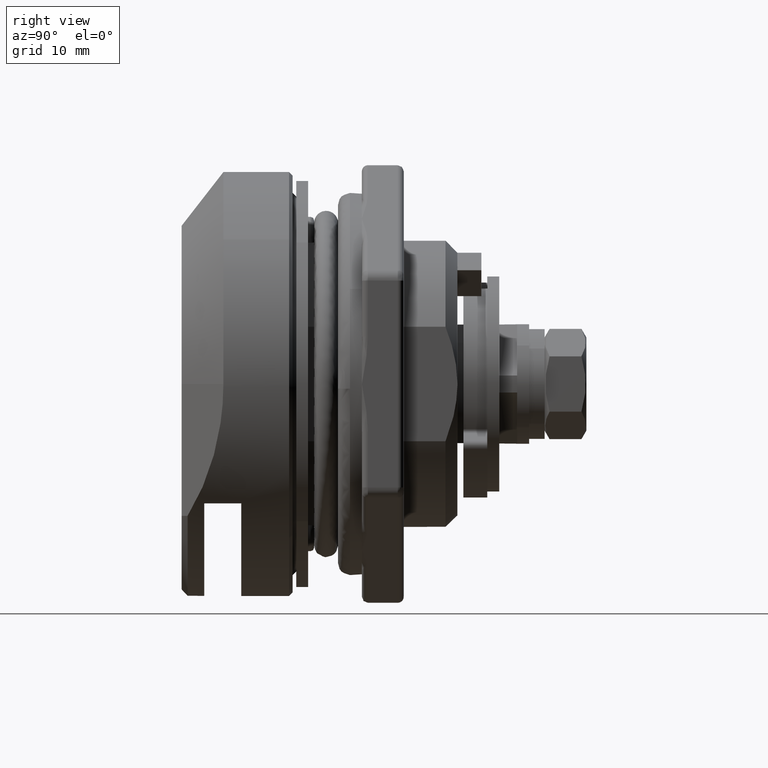
[diagram: clean part render]
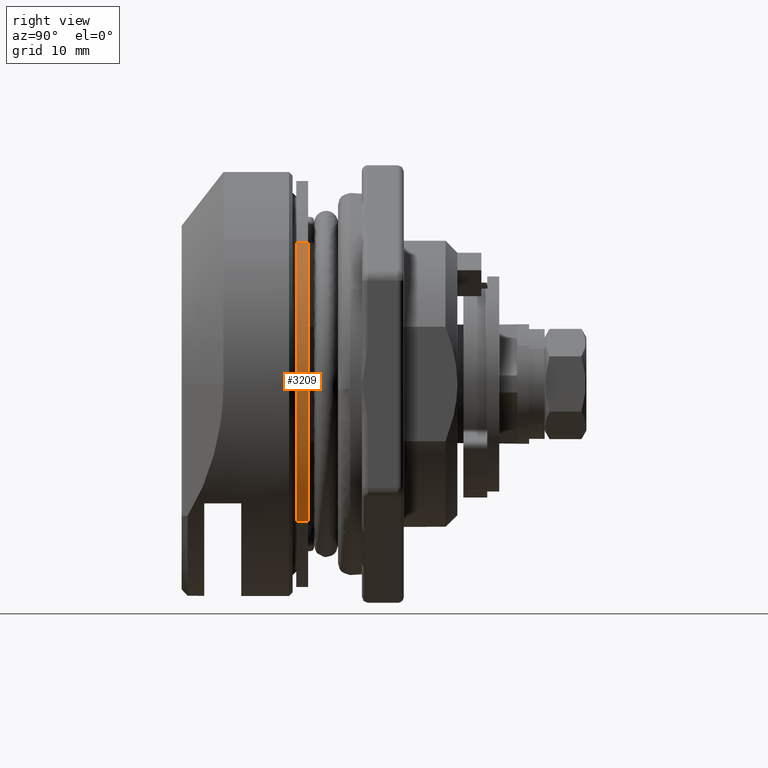
[diagram: same view with one face highlighted and labeled with its STEP entity id]
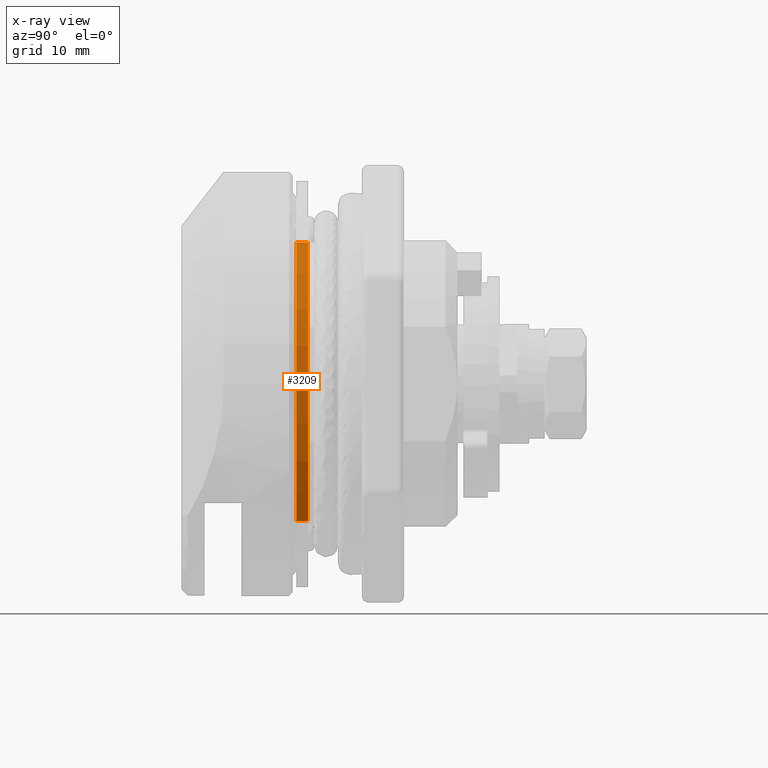
[diagram: x-ray of the same camera — body ghosted, the highlighted face saturated]
A machine part, right view. The second image highlights one B-rep face of the part: STEP entity #3209.
The next image is the same camera in x-ray: the body ghosted, the highlighted face saturated — about 0% of this face is hidden behind the body in this view.
In plain terms, the highlighted face is a freeform B-spline surface patch.
Its self-contained STEP definition (entity closure, byte-faithful):
#2999=CARTESIAN_POINT('',(0.300000000008326,-12.183066308392700,11.856343705453920));
#3000=VERTEX_POINT('',#2999);
#3013=CARTESIAN_POINT('',(1.299999999999968,-12.183066308683390,11.856343705155220));
#3014=VERTEX_POINT('',#3013);
#3015=CARTESIAN_POINT('',(1.299999999999968,-12.183066308683390,11.856343705155220));
#3016=CARTESIAN_POINT('',(0.300000000008326,-12.183066308392700,11.856343705453920));
#3017=QUASI_UNIFORM_CURVE('',1,(#3015,#3016),.UNSPECIFIED.,.F.,.U.);
#3018=EDGE_CURVE('',#3014,#3000,#3017,.T.);
#3070=CARTESIAN_POINT('',(1.299999999999968,-12.533714949061380,-11.485033687686100));
#3071=VERTEX_POINT('',#3070);
#3084=CARTESIAN_POINT('',(0.299999999983196,-12.533714949353771,-11.485033687367020));
#3085=VERTEX_POINT('',#3084);
#3086=CARTESIAN_POINT('',(1.299999999999968,-12.533714949061380,-11.485033687686100));
#3087=CARTESIAN_POINT('',(0.299999999983196,-12.533714949353771,-11.485033687367020));
#3088=QUASI_UNIFORM_CURVE('',1,(#3086,#3087),.UNSPECIFIED.,.F.,.U.);
#3089=EDGE_CURVE('',#3071,#3085,#3088,.T.);
#3142=CARTESIAN_POINT('',(1.324999999999968,-12.533714725772111,-11.485033529466220));
#3143=CARTESIAN_POINT('',(1.324999999999968,-23.379645646699288,0.351223086551685));
#3144=CARTESIAN_POINT('',(1.324999999999968,-12.183066527817532,11.856343870636179));
#3145=CARTESIAN_POINT('',(0.274374999999967,-12.533714725772111,-11.485033529466220));
#3146=CARTESIAN_POINT('',(0.274374999999967,-23.379645646699288,0.351223086551685));
#3147=CARTESIAN_POINT('',(0.274374999999967,-12.183066527817532,11.856343870636179));
#3155=(BOUNDED_SURFACE()B_SPLINE_SURFACE(2,1,((#3142,#3145),(#3143,#3146),(#3144,#3147)),.UNSPECIFIED.,.F.,.F.,.U.)B_SPLINE_SURFACE_WITH_KNOTS((3,3),(2,2),(0.0,27.032440498049439),(0.0,1.0),.UNSPECIFIED.)GEOMETRIC_REPRESENTATION_ITEM()RATIONAL_B_SPLINE_SURFACE(((1.0,1.0),(0.718822509939086,0.718822509939086),(0.977505800795127,0.977505800795127)))REPRESENTATION_ITEM('')SURFACE());
#3156=CARTESIAN_POINT('',(0.299999999999967,-16.999999999999961,-0.000001090220331));
#3157=VERTEX_POINT('',#3156);
#3158=CARTESIAN_POINT('',(0.300000000008326,-12.183066308392700,11.856343705453920));
#3159=CARTESIAN_POINT('',(0.300000000007911,-12.755020690758689,11.268682729777129));
#3160=CARTESIAN_POINT('',(0.300000000007098,-13.725408438124299,10.115220654100311));
#3161=CARTESIAN_POINT('',(0.300000000005775,-14.920080249969400,8.238161578679089));
#3162=CARTESIAN_POINT('',(0.300000000004447,-15.815655901373891,6.351464932428500));
#3163=CARTESIAN_POINT('',(0.300000000003000,-16.493174609844310,4.304116658751858));
#3164=CARTESIAN_POINT('',(0.300000000001506,-16.906849877382140,2.186784520573789));
#3165=CARTESIAN_POINT('',(0.300000000000479,-17.000022988552981,0.717538174116659));
#3166=CARTESIAN_POINT('',(0.299999999999967,-16.999999999999961,-0.000001090220331));
#3167=B_SPLINE_CURVE_WITH_KNOTS('',3,(#3158,#3159,#3160,#3161,#3162,#3163,#3164,#3165,#3166),.UNSPECIFIED.,.F.,.U.,(4,1,1,1,1,1,4),(0.000000012820903,2.460141705217081,4.510261295356344,6.662867222448802,8.712994961610157,10.968137193775320,13.120754755714220),.UNSPECIFIED.);
#3168=EDGE_CURVE('',#3000,#3157,#3167,.T.);
#3169=ORIENTED_EDGE('',*,*,#3168,.T.);
#3170=CARTESIAN_POINT('',(0.299999999999967,-16.999999999999961,-0.000001090220331));
#3171=CARTESIAN_POINT('',(0.299999999998479,-17.000099568371770,-1.018002740696978));
#3172=CARTESIAN_POINT('',(0.299999999995991,-16.846131525290652,-2.725570673040670));
#3173=CARTESIAN_POINT('',(0.299999999992158,-16.203610391692159,-5.345702458303602));
#3174=CARTESIAN_POINT('',(0.299999999988866,-15.280166969115990,-7.603383865499750));
#3175=CARTESIAN_POINT('',(0.299999999985734,-13.990157466212260,-9.746348056578141));
#3176=CARTESIAN_POINT('',(0.299999999984012,-13.044001577655139,-10.928196790581509));
#3177=CARTESIAN_POINT('',(0.299999999983196,-12.533714949353771,-11.485033687367020));
#3178=B_SPLINE_CURVE_WITH_KNOTS('',3,(#3170,#3171,#3172,#3173,#3174,#3175,#3176,#3177),.UNSPECIFIED.,.F.,.U.,(4,1,1,1,1,4),(0.000000011988105,3.053989030810294,5.122830665356128,8.078293973527055,10.344157987848750,12.610020466078881),.UNSPECIFIED.);
#3179=EDGE_CURVE('',#3157,#3085,#3178,.T.);
#3180=ORIENTED_EDGE('',*,*,#3179,.T.);
#3181=ORIENTED_EDGE('',*,*,#3089,.F.);
#3182=CARTESIAN_POINT('',(1.299999999999968,-16.999999999999961,-0.000001090220331));
#3183=VERTEX_POINT('',#3182);
#3184=CARTESIAN_POINT('',(1.299999999999968,-16.999999999999961,-0.000001090220331));
#3185=CARTESIAN_POINT('',(1.299999999999967,-17.000140942816358,-1.116526235480513));
#3186=CARTESIAN_POINT('',(1.299999999999969,-16.831134664443500,-2.824064559912044));
#3187=CARTESIAN_POINT('',(1.299999999999969,-16.206685951903779,-5.277880724258214));
#3188=CARTESIAN_POINT('',(1.299999999999970,-15.473335192972989,-7.147606985217486));
#3189=CARTESIAN_POINT('',(1.299999999999963,-14.278773884334120,-9.342762587914796));
#3190=CARTESIAN_POINT('',(1.299999999999967,-13.265929500548371,-10.686139304152210));
#3191=CARTESIAN_POINT('',(1.299999999999968,-12.533714949061380,-11.485033687686100));
#3192=B_SPLINE_CURVE_WITH_KNOTS('',3,(#3184,#3185,#3186,#3187,#3188,#3189,#3190,#3191),.UNSPECIFIED.,.F.,.U.,(4,1,1,1,1,4),(0.000000011992555,3.349537504126058,5.122830665534292,7.585713096423018,9.358999258177786,12.610020466511640),.UNSPECIFIED.);
#3193=EDGE_CURVE('',#3183,#3071,#3192,.T.);
#3194=ORIENTED_EDGE('',*,*,#3193,.F.);
#3195=CARTESIAN_POINT('',(1.299999999999968,-12.183066308683390,11.856343705155220));
#3196=CARTESIAN_POINT('',(1.299999999999973,-12.826518055908741,11.195232115143311));
#3197=CARTESIAN_POINT('',(1.299999999999953,-14.114632041529090,9.635778068233048));
#3198=CARTESIAN_POINT('',(1.299999999999982,-15.309878681753290,7.511731398328267));
#3199=CARTESIAN_POINT('',(1.299999999999960,-16.133820891068190,5.447684073327999));
#3200=CARTESIAN_POINT('',(1.299999999999971,-16.787695875151911,3.177610071883028));
#3201=CARTESIAN_POINT('',(1.299999999999975,-17.000185653168959,1.230084101800232));
#3202=CARTESIAN_POINT('',(1.299999999999968,-16.999999999999961,-0.000001090220331));
#3203=B_SPLINE_CURVE_WITH_KNOTS('',3,(#3195,#3196,#3197,#3198,#3199,#3200,#3201,#3202),.UNSPECIFIED.,.F.,.U.,(4,1,1,1,1,4),(0.000000012823763,2.767658388383950,6.047859682443310,7.277904505604022,9.430541956410181,13.120754755297380),.UNSPECIFIED.);
#3204=EDGE_CURVE('',#3014,#3183,#3203,.T.);
#3205=ORIENTED_EDGE('',*,*,#3204,.F.);
#3206=ORIENTED_EDGE('',*,*,#3018,.T.);
#3207=EDGE_LOOP('',(#3169,#3180,#3181,#3194,#3205,#3206));
#3208=FACE_OUTER_BOUND('',#3207,.T.);
#3209=ADVANCED_FACE('',(#3208),#3155,.T.);